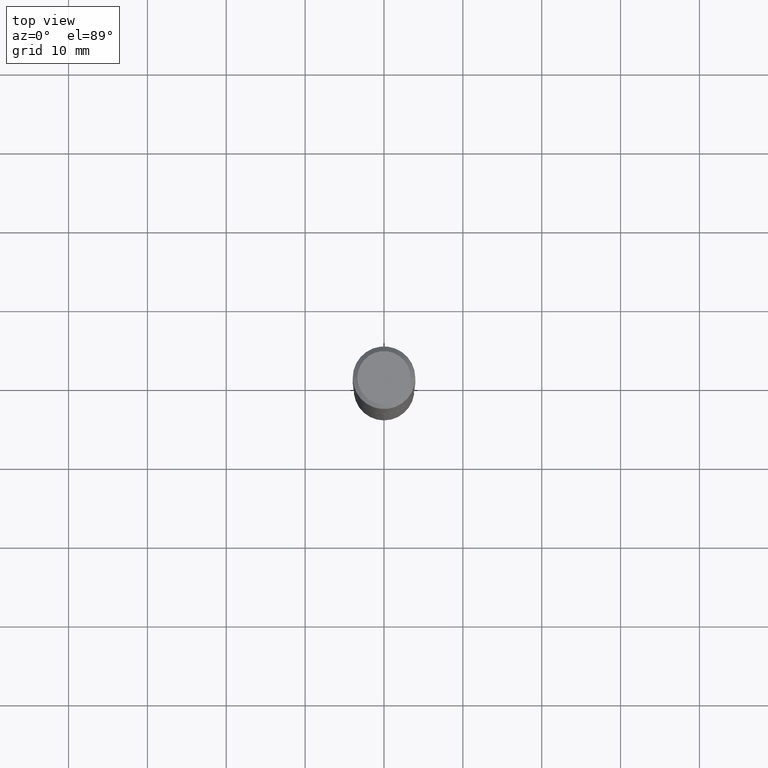
[diagram: clean part render]
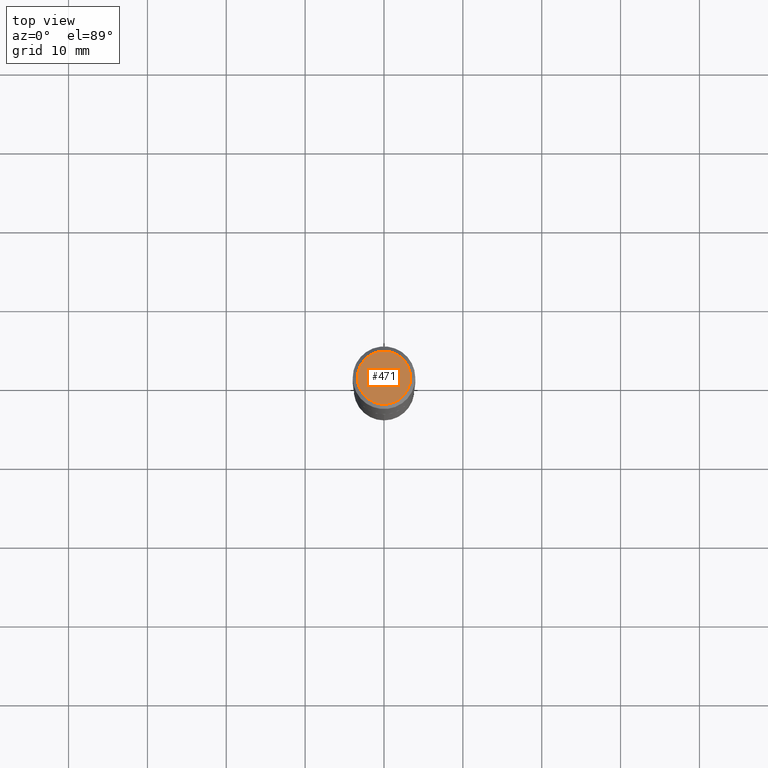
[diagram: same view with one face highlighted and labeled with its STEP entity id]
A machine part, top view. The second image highlights one B-rep face of the part: STEP entity #471.
In plain terms, the highlighted planar face has unit normal (0, -0, -1).
Its self-contained STEP definition (entity closure, byte-faithful):
#52 = FACE_OUTER_BOUND ( 'NONE', #355, .T. ) ;
#56 = DIRECTION ( 'NONE',  ( 1.000000000000000000, -6.982962677686268288E-15, 4.876286914311434227E-29 ) ) ;
#59 = DIRECTION ( 'NONE',  ( -2.445468806185136597E-29, 3.491481338843145583E-15, 1.000000000000000000 ) ) ;
#78 = AXIS2_PLACEMENT_3D ( 'NONE', #81, #380, #227 ) ;
#81 = CARTESIAN_POINT ( 'NONE',  ( -7.955031918821650812E-47, 1.135767727816383927E-32, 3.252968060235157842E-18 ) ) ;
#131 = CIRCLE ( 'NONE', #454, 0.1328125000000000000 ) ;
#143 = DIRECTION ( 'NONE',  ( 2.438088387897960049E-29, -3.491481338843145188E-15, -1.000000000000000000 ) ) ;
#149 = PLANE ( 'NONE',  #420 ) ;
#159 = ORIENTED_EDGE ( 'NONE', *, *, #385, .T. ) ;
#173 = EDGE_CURVE ( 'NONE', #481, #491, #193, .T. ) ;
#193 = CIRCLE ( 'NONE', #78, 0.1328125000000000000 ) ;
#214 = DIRECTION ( 'NONE',  ( -1.000000000000000000, 6.982962677686265922E-15, -4.876176775795935793E-29 ) ) ;
#227 = DIRECTION ( 'NONE',  ( 1.000000000000000000, -6.982962677686268288E-15, 4.876286914311434227E-29 ) ) ;
#259 = CARTESIAN_POINT ( 'NONE',  ( -3.977515959410825406E-47, 5.678838639081919634E-33, 1.626484030117578921E-18 ) ) ;
#315 = ORIENTED_EDGE ( 'NONE', *, *, #173, .T. ) ;
#355 = EDGE_LOOP ( 'NONE', ( #315, #159 ) ) ;
#380 = DIRECTION ( 'NONE',  ( -2.445468806185136597E-29, 3.491481338843145583E-15, 1.000000000000000000 ) ) ;
#385 = EDGE_CURVE ( 'NONE', #491, #481, #131, .T. ) ;
#420 = AXIS2_PLACEMENT_3D ( 'NONE', #259, #143, #214 ) ;
#436 = CARTESIAN_POINT ( 'NONE',  ( 0.1328125000000000000, -1.032472148179985084E-15, 3.252968060242010686E-18 ) ) ;
#443 = CARTESIAN_POINT ( 'NONE',  ( -0.1328125000000000000, 9.683405275697749214E-16, 3.252968060228529177E-18 ) ) ;
#450 = CARTESIAN_POINT ( 'NONE',  ( -7.955031918821650812E-47, 1.135767727816383927E-32, 3.252968060235157842E-18 ) ) ;
#454 = AXIS2_PLACEMENT_3D ( 'NONE', #450, #59, #56 ) ;
#471 = ADVANCED_FACE ( 'NONE', ( #52 ), #149, .F. ) ;
#481 = VERTEX_POINT ( 'NONE', #443 ) ;
#491 = VERTEX_POINT ( 'NONE', #436 ) ;